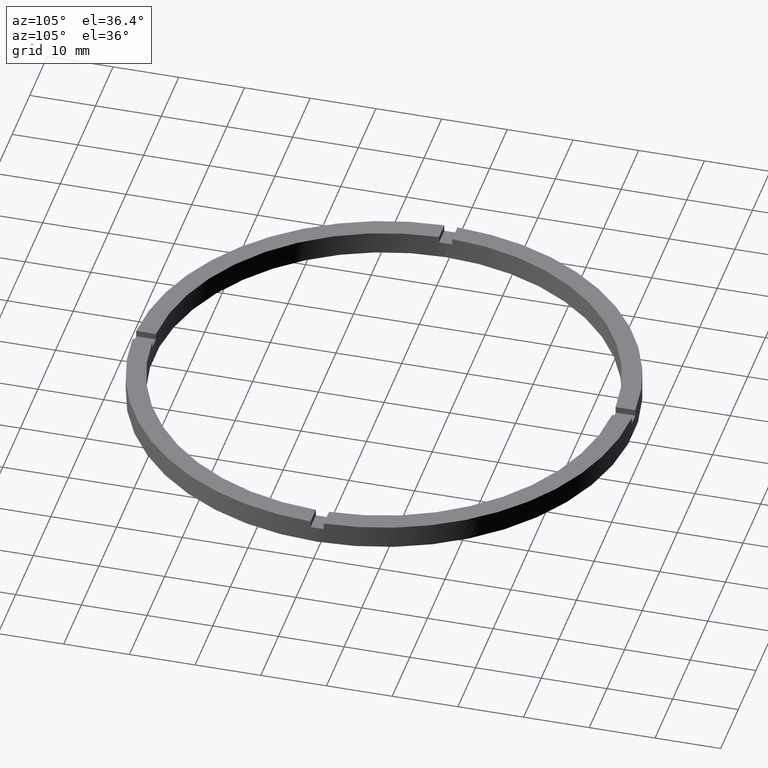
[diagram: clean part render]
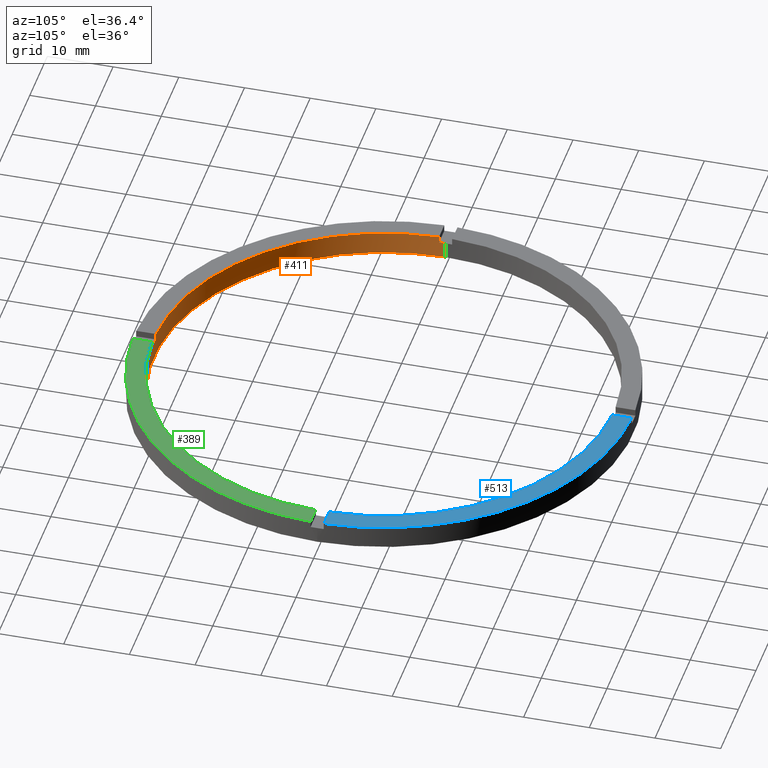
[diagram: same view with three faces highlighted in distinct colors, each labeled with its STEP entity id]
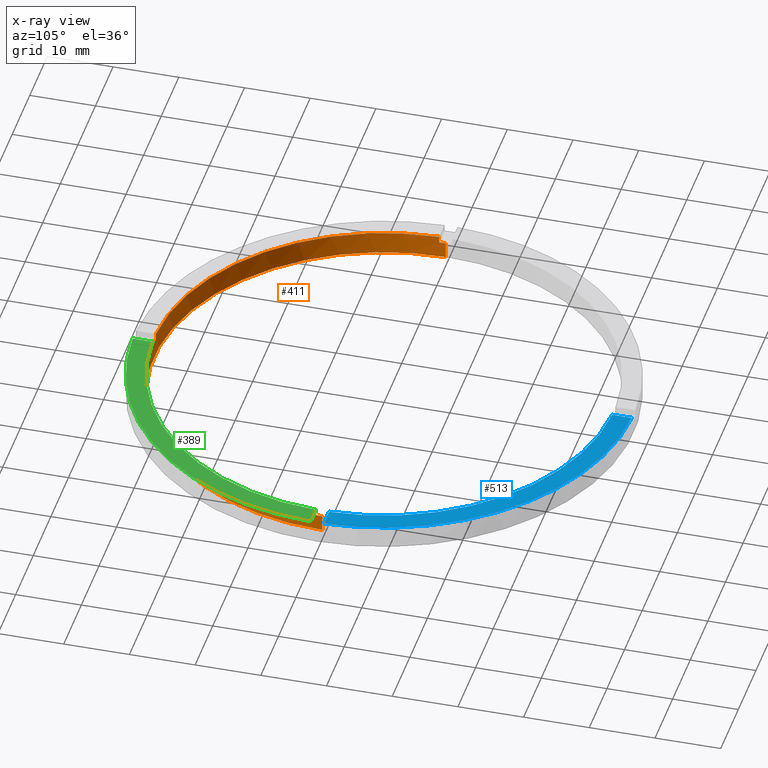
[diagram: x-ray of the same camera — body ghosted, the three highlighted faces saturated]
A machine part, auxiliary view with three faces highlighted in distinct colors.
The next image is the same camera in x-ray (body ghosted, the three faces saturated) — at least one of them is partly hidden behind the body in this view.
Their STEP definitions:

[orange] entity #411 — the highlighted cylindrical surface (partial cylindrical patch) has radius 35 mm, axis along (-0, -0, -1).
#1 = CARTESIAN_POINT ( 'NONE',  ( -35.00000000000000711, 0.000000000000000000, 3.500000000000000000 ) ) ;
#5 = DIRECTION ( 'NONE',  ( 0.000000000000000000, 0.000000000000000000, 1.000000000000000000 ) ) ;
#10 = EDGE_CURVE ( 'NONE', #500, #498, #454, .T. ) ;
#21 = EDGE_CURVE ( 'NONE', #500, #236, #706, .T. ) ;
#24 = VECTOR ( 'NONE', #555, 1000.000000000000000 ) ;
#27 = VECTOR ( 'NONE', #450, 1000.000000000000000 ) ;
#31 = EDGE_CURVE ( 'NONE', #134, #498, #700, .T. ) ;
#47 = CIRCLE ( 'NONE', #238, 35.00000000000000711 ) ;
#48 = FACE_OUTER_BOUND ( 'NONE', #227, .T. ) ;
#55 = CARTESIAN_POINT ( 'NONE',  ( 34.98571136907180090, -1.000000000000157652, 2.500000000000000000 ) ) ;
#58 = DIRECTION ( 'NONE',  ( 0.000000000000000000, 0.000000000000000000, 1.000000000000000000 ) ) ;
#59 = CIRCLE ( 'NONE', #316, 35.00000000000000711 ) ;
#118 = ORIENTED_EDGE ( 'NONE', *, *, #164, .T. ) ;
#131 = CARTESIAN_POINT ( 'NONE',  ( -34.98571136907180801, -1.000000000000027089, 3.500000000000000000 ) ) ;
#133 = VERTEX_POINT ( 'NONE', #733 ) ;
#134 = VERTEX_POINT ( 'NONE', #55 ) ;
#144 = DIRECTION ( 'NONE',  ( 0.000000000000000000, 0.000000000000000000, 1.000000000000000000 ) ) ;
#164 = EDGE_CURVE ( 'NONE', #134, #641, #712, .T. ) ;
#168 = ORIENTED_EDGE ( 'NONE', *, *, #699, .F. ) ;
#170 = VERTEX_POINT ( 'NONE', #541 ) ;
#174 = DIRECTION ( 'NONE',  ( -0.000000000000000000, -0.000000000000000000, -1.000000000000000000 ) ) ;
#204 = CARTESIAN_POINT ( 'NONE',  ( 0.9999999999998397948, -34.98571136907181511, 2.500000000000000000 ) ) ;
#220 = CARTESIAN_POINT ( 'NONE',  ( -34.98571136907180801, -1.000000000000027089, 3.500000000000000000 ) ) ;
#227 = EDGE_LOOP ( 'NONE', ( #118, #598, #168, #754, #355, #602, #472, #654, #353, #244, #375, #742 ) ) ;
#236 = VERTEX_POINT ( 'NONE', #204 ) ;
#238 = AXIS2_PLACEMENT_3D ( 'NONE', #553, #321, #278 ) ;
#244 = ORIENTED_EDGE ( 'NONE', *, *, #21, .F. ) ;
#251 = CARTESIAN_POINT ( 'NONE',  ( -34.98571136907180801, -1.000000000000027089, 2.500000000000000000 ) ) ;
#272 = AXIS2_PLACEMENT_3D ( 'NONE', #430, #561, #305 ) ;
#275 = AXIS2_PLACEMENT_3D ( 'NONE', #308, #523, #493 ) ;
#278 = DIRECTION ( 'NONE',  ( 1.000000000000000000, 0.000000000000000000, 0.000000000000000000 ) ) ;
#296 = CARTESIAN_POINT ( 'NONE',  ( -35.00000000000000711, 0.000000000000000000, 2.500000000000000000 ) ) ;
#297 = DIRECTION ( 'NONE',  ( -0.000000000000000000, -0.000000000000000000, -1.000000000000000000 ) ) ;
#299 = EDGE_CURVE ( 'NONE', #641, #760, #546, .T. ) ;
#305 = DIRECTION ( 'NONE',  ( 1.000000000000000000, 0.000000000000000000, 0.000000000000000000 ) ) ;
#308 = CARTESIAN_POINT ( 'NONE',  ( 0.000000000000000000, 0.000000000000000000, 2.500000000000000000 ) ) ;
#311 = LINE ( 'NONE', #679, #550 ) ;
#316 = AXIS2_PLACEMENT_3D ( 'NONE', #518, #719, #529 ) ;
#318 = CYLINDRICAL_SURFACE ( 'NONE', #532, 35.00000000000000711 ) ;
#320 = EDGE_CURVE ( 'NONE', #379, #412, #531, .T. ) ;
#321 = DIRECTION ( 'NONE',  ( 0.000000000000000000, 0.000000000000000000, 1.000000000000000000 ) ) ;
#335 = EDGE_CURVE ( 'NONE', #133, #170, #311, .T. ) ;
#353 = ORIENTED_EDGE ( 'NONE', *, *, #597, .T. ) ;
#355 = ORIENTED_EDGE ( 'NONE', *, *, #438, .T. ) ;
#364 = CIRCLE ( 'NONE', #275, 35.00000000000000711 ) ;
#369 = VECTOR ( 'NONE', #174, 1000.000000000000000 ) ;
#370 = CARTESIAN_POINT ( 'NONE',  ( 0.9999999999998397948, -34.98571136907181511, 3.500000000000000000 ) ) ;
#373 = LINE ( 'NONE', #1, #369 ) ;
#375 = ORIENTED_EDGE ( 'NONE', *, *, #10, .T. ) ;
#379 = VERTEX_POINT ( 'NONE', #131 ) ;
#382 = CARTESIAN_POINT ( 'NONE',  ( 34.98571136907180090, -1.000000000000157652, 3.500000000000000000 ) ) ;
#386 = CARTESIAN_POINT ( 'NONE',  ( 0.000000000000000000, 0.000000000000000000, 2.500000000000000000 ) ) ;
#395 = DIRECTION ( 'NONE',  ( 1.000000000000000000, 0.000000000000000000, 0.000000000000000000 ) ) ;
#401 = EDGE_CURVE ( 'NONE', #379, #170, #556, .T. ) ;
#405 = CARTESIAN_POINT ( 'NONE',  ( 35.00000000000000711, 4.286263797015737285E-15, 3.500000000000000000 ) ) ;
#411 = ADVANCED_FACE ( 'NONE', ( #48 ), #318, .F. ) ;
#412 = VERTEX_POINT ( 'NONE', #251 ) ;
#414 = AXIS2_PLACEMENT_3D ( 'NONE', #734, #58, #395 ) ;
#420 = DIRECTION ( 'NONE',  ( 1.000000000000000000, 0.000000000000000000, 0.000000000000000000 ) ) ;
#430 = CARTESIAN_POINT ( 'NONE',  ( 0.000000000000000000, 0.000000000000000000, 3.500000000000000000 ) ) ;
#434 = CARTESIAN_POINT ( 'NONE',  ( 0.9999999999998397948, -34.98571136907181511, 3.500000000000000000 ) ) ;
#435 = CARTESIAN_POINT ( 'NONE',  ( 35.00000000000000711, 4.286263797015737285E-15, 2.500000000000000000 ) ) ;
#438 = EDGE_CURVE ( 'NONE', #466, #412, #47, .T. ) ;
#442 = DIRECTION ( 'NONE',  ( -1.000000000000000000, 0.000000000000000000, 0.000000000000000000 ) ) ;
#450 = DIRECTION ( 'NONE',  ( -0.000000000000000000, -0.000000000000000000, -1.000000000000000000 ) ) ;
#454 = CIRCLE ( 'NONE', #272, 35.00000000000000711 ) ;
#466 = VERTEX_POINT ( 'NONE', #296 ) ;
#472 = ORIENTED_EDGE ( 'NONE', *, *, #401, .T. ) ;
#493 = DIRECTION ( 'NONE',  ( 1.000000000000000000, 0.000000000000000000, 0.000000000000000000 ) ) ;
#498 = VERTEX_POINT ( 'NONE', #382 ) ;
#500 = VERTEX_POINT ( 'NONE', #370 ) ;
#518 = CARTESIAN_POINT ( 'NONE',  ( 0.000000000000000000, 0.000000000000000000, 0.000000000000000000 ) ) ;
#523 = DIRECTION ( 'NONE',  ( -0.000000000000000000, 0.000000000000000000, 1.000000000000000000 ) ) ;
#529 = DIRECTION ( 'NONE',  ( 1.000000000000000000, 0.000000000000000000, 0.000000000000000000 ) ) ;
#531 = LINE ( 'NONE', #220, #27 ) ;
#532 = AXIS2_PLACEMENT_3D ( 'NONE', #704, #297, #442 ) ;
#541 = CARTESIAN_POINT ( 'NONE',  ( -1.000000000000160316, -34.98571136907180090, 3.500000000000000000 ) ) ;
#546 = LINE ( 'NONE', #405, #24 ) ;
#550 = VECTOR ( 'NONE', #668, 1000.000000000000000 ) ;
#553 = CARTESIAN_POINT ( 'NONE',  ( 0.000000000000000000, 0.000000000000000000, 2.500000000000000000 ) ) ;
#555 = DIRECTION ( 'NONE',  ( -0.000000000000000000, -0.000000000000000000, -1.000000000000000000 ) ) ;
#556 = CIRCLE ( 'NONE', #414, 35.00000000000000711 ) ;
#561 = DIRECTION ( 'NONE',  ( 0.000000000000000000, 0.000000000000000000, 1.000000000000000000 ) ) ;
#574 = CARTESIAN_POINT ( 'NONE',  ( 35.00000000000000711, 4.286263797015737285E-15, 0.000000000000000000 ) ) ;
#597 = EDGE_CURVE ( 'NONE', #133, #236, #364, .T. ) ;
#598 = ORIENTED_EDGE ( 'NONE', *, *, #299, .T. ) ;
#602 = ORIENTED_EDGE ( 'NONE', *, *, #320, .F. ) ;
#619 = EDGE_CURVE ( 'NONE', #466, #691, #373, .T. ) ;
#641 = VERTEX_POINT ( 'NONE', #435 ) ;
#654 = ORIENTED_EDGE ( 'NONE', *, *, #335, .F. ) ;
#668 = DIRECTION ( 'NONE',  ( 0.000000000000000000, 0.000000000000000000, 1.000000000000000000 ) ) ;
#679 = CARTESIAN_POINT ( 'NONE',  ( -1.000000000000160316, -34.98571136907180090, 3.500000000000000000 ) ) ;
#684 = CARTESIAN_POINT ( 'NONE',  ( 34.98571136907180090, -1.000000000000157652, 3.500000000000000000 ) ) ;
#691 = VERTEX_POINT ( 'NONE', #709 ) ;
#698 = AXIS2_PLACEMENT_3D ( 'NONE', #386, #144, #420 ) ;
#699 = EDGE_CURVE ( 'NONE', #691, #760, #59, .T. ) ;
#700 = LINE ( 'NONE', #684, #715 ) ;
#704 = CARTESIAN_POINT ( 'NONE',  ( 0.000000000000000000, 0.000000000000000000, 3.500000000000000000 ) ) ;
#706 = LINE ( 'NONE', #434, #724 ) ;
#709 = CARTESIAN_POINT ( 'NONE',  ( -35.00000000000000711, 0.000000000000000000, 0.000000000000000000 ) ) ;
#712 = CIRCLE ( 'NONE', #698, 35.00000000000000711 ) ;
#715 = VECTOR ( 'NONE', #5, 1000.000000000000000 ) ;
#717 = DIRECTION ( 'NONE',  ( -0.000000000000000000, -0.000000000000000000, -1.000000000000000000 ) ) ;
#719 = DIRECTION ( 'NONE',  ( 0.000000000000000000, 0.000000000000000000, 1.000000000000000000 ) ) ;
#724 = VECTOR ( 'NONE', #717, 1000.000000000000000 ) ;
#733 = CARTESIAN_POINT ( 'NONE',  ( -1.000000000000160316, -34.98571136907180090, 2.500000000000000000 ) ) ;
#734 = CARTESIAN_POINT ( 'NONE',  ( 0.000000000000000000, 0.000000000000000000, 3.500000000000000000 ) ) ;
#742 = ORIENTED_EDGE ( 'NONE', *, *, #31, .F. ) ;
#754 = ORIENTED_EDGE ( 'NONE', *, *, #619, .F. ) ;
#760 = VERTEX_POINT ( 'NONE', #574 ) ;

[blue] entity #513 — the highlighted planar face has unit normal (0, 0, 1).
#15 = LINE ( 'NONE', #352, #295 ) ;
#26 = EDGE_CURVE ( 'NONE', #92, #496, #721, .T. ) ;
#34 = CARTESIAN_POINT ( 'NONE',  ( 0.9999999999999746869, 37.98683982644515567, 3.500000000000000000 ) ) ;
#44 = DIRECTION ( 'NONE',  ( 0.000000000000000000, 0.000000000000000000, 1.000000000000000000 ) ) ;
#84 = DIRECTION ( 'NONE',  ( -1.000000000000000000, -6.505213034913025371E-17, -0.000000000000000000 ) ) ;
#92 = VERTEX_POINT ( 'NONE', #672 ) ;
#113 = VECTOR ( 'NONE', #132, 1000.000000000000000 ) ;
#114 = ORIENTED_EDGE ( 'NONE', *, *, #162, .F. ) ;
#132 = DIRECTION ( 'NONE',  ( 0.000000000000000000, 1.000000000000000000, 0.000000000000000000 ) ) ;
#159 = VERTEX_POINT ( 'NONE', #544 ) ;
#162 = EDGE_CURVE ( 'NONE', #445, #159, #203, .T. ) ;
#176 = DIRECTION ( 'NONE',  ( 1.000000000000000000, 0.000000000000000000, -0.000000000000000000 ) ) ;
#203 = CIRCLE ( 'NONE', #633, 35.00000000000000711 ) ;
#243 = ORIENTED_EDGE ( 'NONE', *, *, #560, .F. ) ;
#289 = CARTESIAN_POINT ( 'NONE',  ( 0.000000000000000000, 0.000000000000000000, 3.500000000000000000 ) ) ;
#294 = EDGE_CURVE ( 'NONE', #92, #445, #15, .T. ) ;
#295 = VECTOR ( 'NONE', #84, 1000.000000000000000 ) ;
#300 = AXIS2_PLACEMENT_3D ( 'NONE', #289, #303, #176 ) ;
#303 = DIRECTION ( 'NONE',  ( 0.000000000000000000, 0.000000000000000000, 1.000000000000000000 ) ) ;
#336 = LINE ( 'NONE', #349, #113 ) ;
#349 = CARTESIAN_POINT ( 'NONE',  ( 0.9999999999999746869, 27.99999999999999645, 3.500000000000000000 ) ) ;
#352 = CARTESIAN_POINT ( 'NONE',  ( 27.99999999999998934, 0.9999999999998419042, 3.500000000000000000 ) ) ;
#424 = DIRECTION ( 'NONE',  ( 0.000000000000000000, 0.000000000000000000, 1.000000000000000000 ) ) ;
#445 = VERTEX_POINT ( 'NONE', #753 ) ;
#496 = VERTEX_POINT ( 'NONE', #34 ) ;
#497 = DIRECTION ( 'NONE',  ( 1.000000000000000000, 0.000000000000000000, 0.000000000000000000 ) ) ;
#513 = ADVANCED_FACE ( 'NONE', ( #572 ), #779, .T. ) ;
#544 = CARTESIAN_POINT ( 'NONE',  ( 0.9999999999999746869, 34.98571136907180801, 3.500000000000000000 ) ) ;
#560 = EDGE_CURVE ( 'NONE', #159, #496, #336, .T. ) ;
#567 = AXIS2_PLACEMENT_3D ( 'NONE', #603, #44, #765 ) ;
#572 = FACE_OUTER_BOUND ( 'NONE', #651, .T. ) ;
#589 = CARTESIAN_POINT ( 'NONE',  ( 0.000000000000000000, 0.000000000000000000, 3.500000000000000000 ) ) ;
#603 = CARTESIAN_POINT ( 'NONE',  ( 0.000000000000000000, 0.000000000000000000, 3.500000000000000000 ) ) ;
#629 = ORIENTED_EDGE ( 'NONE', *, *, #26, .T. ) ;
#633 = AXIS2_PLACEMENT_3D ( 'NONE', #589, #424, #497 ) ;
#644 = ORIENTED_EDGE ( 'NONE', *, *, #294, .F. ) ;
#651 = EDGE_LOOP ( 'NONE', ( #243, #114, #644, #629 ) ) ;
#672 = CARTESIAN_POINT ( 'NONE',  ( 37.98683982644516277, 0.9999999999998425704, 3.500000000000000000 ) ) ;
#721 = CIRCLE ( 'NONE', #567, 38.00000000000000000 ) ;
#753 = CARTESIAN_POINT ( 'NONE',  ( 34.98571136907181511, 0.9999999999998423483, 3.500000000000000000 ) ) ;
#765 = DIRECTION ( 'NONE',  ( 1.000000000000000000, 0.000000000000000000, 0.000000000000000000 ) ) ;
#779 = PLANE ( 'NONE',  #300 ) ;

[green] entity #389 — the highlighted planar face has unit normal (0, 0, 1).
#10 = EDGE_CURVE ( 'NONE', #500, #498, #454, .T. ) ;
#13 = DIRECTION ( 'NONE',  ( 1.000000000000000000, 0.000000000000000000, 0.000000000000000000 ) ) ;
#18 = CARTESIAN_POINT ( 'NONE',  ( 37.98683982644514856, -1.000000000000157430, 3.500000000000000000 ) ) ;
#36 = VECTOR ( 'NONE', #315, 1000.000000000000000 ) ;
#45 = PLANE ( 'NONE',  #711 ) ;
#68 = EDGE_CURVE ( 'NONE', #141, #713, #451, .T. ) ;
#109 = CARTESIAN_POINT ( 'NONE',  ( 27.99999999999998934, -1.000000000000158096, 3.500000000000000000 ) ) ;
#112 = DIRECTION ( 'NONE',  ( 0.000000000000000000, 0.000000000000000000, 1.000000000000000000 ) ) ;
#136 = CARTESIAN_POINT ( 'NONE',  ( 0.000000000000000000, 0.000000000000000000, 3.500000000000000000 ) ) ;
#141 = VERTEX_POINT ( 'NONE', #210 ) ;
#157 = ORIENTED_EDGE ( 'NONE', *, *, #393, .F. ) ;
#210 = CARTESIAN_POINT ( 'NONE',  ( 0.9999999999998402389, -37.98683982644516277, 3.500000000000000000 ) ) ;
#230 = ORIENTED_EDGE ( 'NONE', *, *, #68, .T. ) ;
#260 = CARTESIAN_POINT ( 'NONE',  ( 0.000000000000000000, 0.000000000000000000, 3.500000000000000000 ) ) ;
#263 = AXIS2_PLACEMENT_3D ( 'NONE', #136, #112, #13 ) ;
#265 = DIRECTION ( 'NONE',  ( 1.000000000000000000, 0.000000000000000000, -0.000000000000000000 ) ) ;
#272 = AXIS2_PLACEMENT_3D ( 'NONE', #430, #561, #305 ) ;
#305 = DIRECTION ( 'NONE',  ( 1.000000000000000000, 0.000000000000000000, 0.000000000000000000 ) ) ;
#307 = DIRECTION ( 'NONE',  ( 0.000000000000000000, 0.000000000000000000, 1.000000000000000000 ) ) ;
#315 = DIRECTION ( 'NONE',  ( -1.301042606982605074E-16, 1.000000000000000000, -0.000000000000000000 ) ) ;
#334 = VECTOR ( 'NONE', #479, 1000.000000000000000 ) ;
#343 = LINE ( 'NONE', #109, #334 ) ;
#370 = CARTESIAN_POINT ( 'NONE',  ( 0.9999999999998397948, -34.98571136907181511, 3.500000000000000000 ) ) ;
#382 = CARTESIAN_POINT ( 'NONE',  ( 34.98571136907180090, -1.000000000000157652, 3.500000000000000000 ) ) ;
#389 = ADVANCED_FACE ( 'NONE', ( #558 ), #45, .T. ) ;
#393 = EDGE_CURVE ( 'NONE', #141, #500, #559, .T. ) ;
#421 = ORIENTED_EDGE ( 'NONE', *, *, #10, .F. ) ;
#430 = CARTESIAN_POINT ( 'NONE',  ( 0.000000000000000000, 0.000000000000000000, 3.500000000000000000 ) ) ;
#451 = CIRCLE ( 'NONE', #263, 38.00000000000000000 ) ;
#454 = CIRCLE ( 'NONE', #272, 35.00000000000000711 ) ;
#479 = DIRECTION ( 'NONE',  ( 1.000000000000000000, 6.505213034913025371E-17, 0.000000000000000000 ) ) ;
#487 = ORIENTED_EDGE ( 'NONE', *, *, #534, .F. ) ;
#498 = VERTEX_POINT ( 'NONE', #382 ) ;
#500 = VERTEX_POINT ( 'NONE', #370 ) ;
#534 = EDGE_CURVE ( 'NONE', #498, #713, #343, .T. ) ;
#558 = FACE_OUTER_BOUND ( 'NONE', #752, .T. ) ;
#559 = LINE ( 'NONE', #592, #36 ) ;
#561 = DIRECTION ( 'NONE',  ( 0.000000000000000000, 0.000000000000000000, 1.000000000000000000 ) ) ;
#592 = CARTESIAN_POINT ( 'NONE',  ( 0.9999999999998389066, -28.00000000000017764, 3.500000000000000000 ) ) ;
#711 = AXIS2_PLACEMENT_3D ( 'NONE', #260, #307, #265 ) ;
#713 = VERTEX_POINT ( 'NONE', #18 ) ;
#752 = EDGE_LOOP ( 'NONE', ( #487, #421, #157, #230 ) ) ;